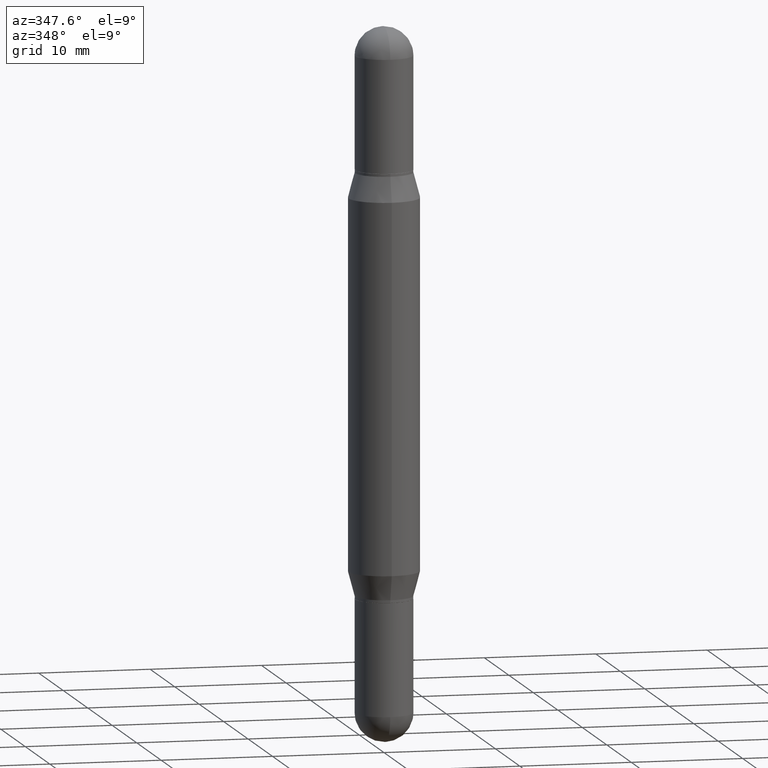
[diagram: clean part render]
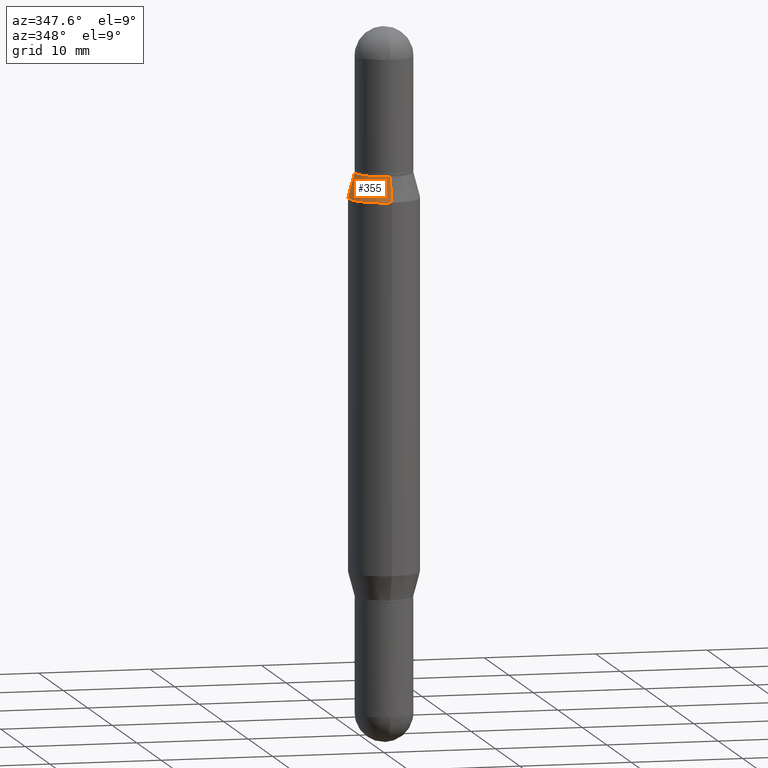
[diagram: same view with one face highlighted and labeled with its STEP entity id]
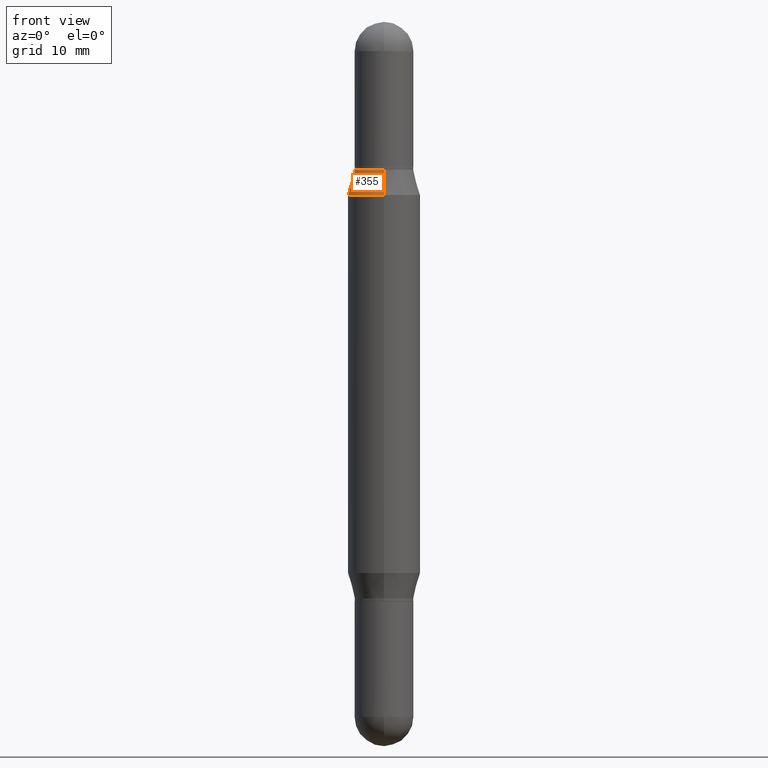
[diagram: same view with one face highlighted and labeled with its STEP entity id]
A machine part, auxiliary view. The second image highlights one B-rep face of the part: STEP entity #355.
A second angle (front view) of the same face is appended — the face is thin or edge-on in the first view.
In plain terms, the highlighted conical surface has half-angle 15 deg.
Its self-contained STEP definition (entity closure, byte-faithful):
#25 = CIRCLE ( 'NONE', #620, 0.1015499999999999875 ) ;
#32 = DIRECTION ( 'NONE',  ( 2.445552073783824727E-29, 3.479733710918447053E-15, 1.000000000000000000 ) ) ;
#44 = DIRECTION ( 'NONE',  ( -2.445552073783824727E-29, -3.479733710918447053E-15, -1.000000000000000000 ) ) ;
#155 = EDGE_LOOP ( 'NONE', ( #524, #257, #848, #551 ) ) ;
#159 = DIRECTION ( 'NONE',  ( -1.807323732225330534E-15, -0.2588190451025250138, -0.9659258262890670910 ) ) ;
#203 = VERTEX_POINT ( 'NONE', #508 ) ;
#217 = CARTESIAN_POINT ( 'NONE',  ( 4.866648626829811762E-29, -1.789199672548507475E-15, -0.5100000000000000089 ) ) ;
#223 = DIRECTION ( 'NONE',  ( 1.775627540710965497E-15, 0.2588190451025182415, -0.9659258262890689783 ) ) ;
#253 = VERTEX_POINT ( 'NONE', #711 ) ;
#257 = ORIENTED_EDGE ( 'NONE', *, *, #946, .T. ) ;
#290 = DIRECTION ( 'NONE',  ( -6.982962677686266711E-15, -1.000000000000000000, 3.362688323072702491E-15 ) ) ;
#318 = CIRCLE ( 'NONE', #699, 0.1250000000000000000 ) ;
#335 = CARTESIAN_POINT ( 'NONE',  ( 4.652622245149366935E-29, -2.093734106038218116E-15, -0.5975165914374899190 ) ) ;
#355 = ADVANCED_FACE ( 'NONE', ( #890 ), #663, .T. ) ;
#365 = AXIS2_PLACEMENT_3D ( 'NONE', #217, #44, #290 ) ;
#376 = DIRECTION ( 'NONE',  ( -6.982962677686266711E-15, -1.000000000000000000, 3.362688323072702491E-15 ) ) ;
#428 = DIRECTION ( 'NONE',  ( 2.445552073783824727E-29, 3.479733710918447053E-15, 1.000000000000000000 ) ) ;
#443 = EDGE_CURVE ( 'NONE', #253, #591, #25, .T. ) ;
#508 = CARTESIAN_POINT ( 'NONE',  ( -8.728703347107367960E-16, -0.1250000000000021094, -0.5975165914374894749 ) ) ;
#524 = ORIENTED_EDGE ( 'NONE', *, *, #443, .F. ) ;
#551 = ORIENTED_EDGE ( 'NONE', *, *, #826, .F. ) ;
#591 = VERTEX_POINT ( 'NONE', #972 ) ;
#620 = AXIS2_PLACEMENT_3D ( 'NONE', #739, #32, #376 ) ;
#657 = LINE ( 'NONE', #994, #757 ) ;
#663 = CONICAL_SURFACE ( 'NONE', #365, 0.1015499999999999875, 0.2617993877991502960 ) ;
#672 = LINE ( 'NONE', #1082, #1070 ) ;
#692 = DIRECTION ( 'NONE',  ( -6.982962677686265922E-15, -1.000000000000000000, 3.278217592397115862E-15 ) ) ;
#699 = AXIS2_PLACEMENT_3D ( 'NONE', #335, #428, #692 ) ;
#711 = CARTESIAN_POINT ( 'NONE',  ( 6.966835716737476402E-16, 0.1015499999999981973, -0.5100000000000003419 ) ) ;
#739 = CARTESIAN_POINT ( 'NONE',  ( 4.866648626829811762E-29, -1.789199672548507475E-15, -0.5100000000000000089 ) ) ;
#757 = VECTOR ( 'NONE', #223, 39.37007874015748143 ) ;
#826 = EDGE_CURVE ( 'NONE', #591, #203, #672, .T. ) ;
#848 = ORIENTED_EDGE ( 'NONE', *, *, #957, .T. ) ;
#890 = FACE_OUTER_BOUND ( 'NONE', #155, .T. ) ;
#946 = EDGE_CURVE ( 'NONE', #253, #1079, #657, .T. ) ;
#957 = EDGE_CURVE ( 'NONE', #1079, #203, #318, .T. ) ;
#972 = CARTESIAN_POINT ( 'NONE',  ( -7.091198599189916755E-16, -0.1015500000000017777, -0.5099999999999996758 ) ) ;
#994 = CARTESIAN_POINT ( 'NONE',  ( 6.966835716737475416E-16, 0.1015499999999981973, -0.5100000000000003419 ) ) ;
#1068 = CARTESIAN_POINT ( 'NONE',  ( 8.575622497214877909E-16, 0.1249999999999979045, -0.5975165914374903631 ) ) ;
#1070 = VECTOR ( 'NONE', #159, 39.37007874015748143 ) ;
#1079 = VERTEX_POINT ( 'NONE', #1068 ) ;
#1082 = CARTESIAN_POINT ( 'NONE',  ( -7.091198599189916755E-16, -0.1015500000000017777, -0.5099999999999996758 ) ) ;